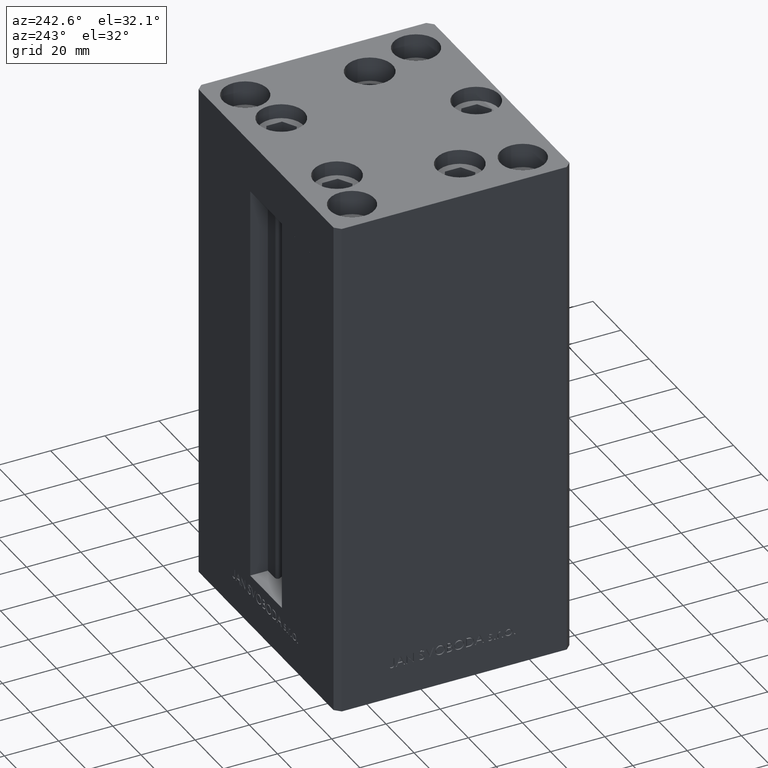
[diagram: clean part render]
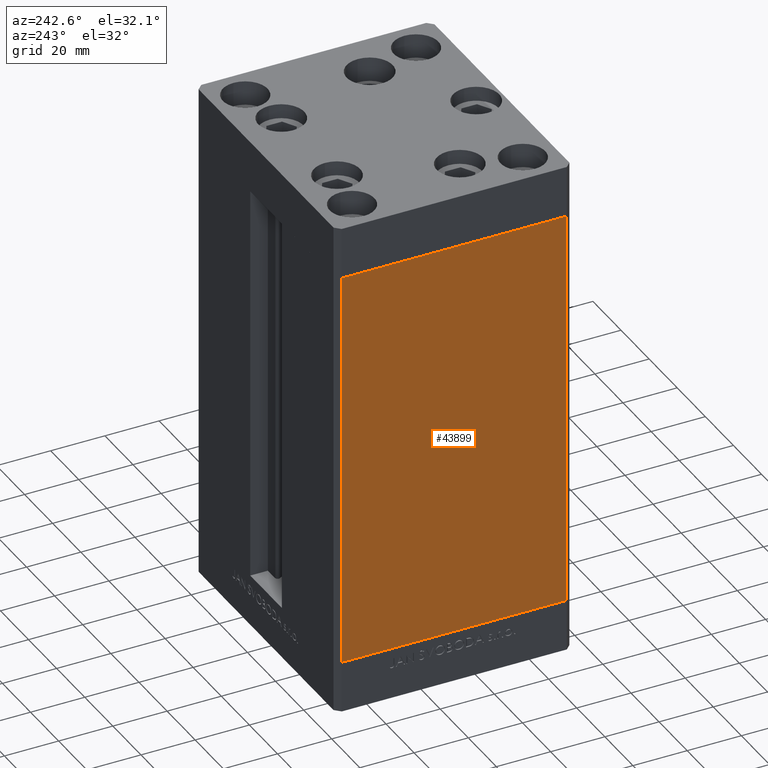
[diagram: same view with one face highlighted and labeled with its STEP entity id]
A machine part, auxiliary view. The second image highlights one B-rep face of the part: STEP entity #43899.
In plain terms, the highlighted planar face has unit normal (1, 0, 0).
Its self-contained STEP definition (entity closure, byte-faithful):
#1165 = ORIENTED_EDGE ( 'NONE', *, *, #12941, .F. ) ;
#2141 = FACE_OUTER_BOUND ( 'NONE', #47112, .T. ) ;
#2639 = CARTESIAN_POINT ( 'NONE',  ( -50.00000000000001421, 41.49999999999999289, 148.5000000000000000 ) ) ;
#3711 = DIRECTION ( 'NONE',  ( -0.000000000000000000, -0.000000000000000000, -1.000000000000000000 ) ) ;
#4385 = CARTESIAN_POINT ( 'NONE',  ( -49.99999999999998579, -41.49999999999999289, 148.5000000000000000 ) ) ;
#5912 = DIRECTION ( 'NONE',  ( -3.344045254895050480E-16, 1.000000000000000000, 0.000000000000000000 ) ) ;
#10884 = LINE ( 'NONE', #37479, #31585 ) ;
#11240 = LINE ( 'NONE', #22529, #28322 ) ;
#12941 = EDGE_CURVE ( 'NONE', #17234, #38104, #42525, .T. ) ;
#13695 = VERTEX_POINT ( 'NONE', #38877 ) ;
#17234 = VERTEX_POINT ( 'NONE', #22021 ) ;
#18579 = VECTOR ( 'NONE', #30507, 1000.000000000000000 ) ;
#18679 = DIRECTION ( 'NONE',  ( 3.344045254895050973E-16, -1.000000000000000000, 0.000000000000000000 ) ) ;
#20809 = ORIENTED_EDGE ( 'NONE', *, *, #21208, .T. ) ;
#21208 = EDGE_CURVE ( 'NONE', #35859, #13695, #11240, .T. ) ;
#22021 = CARTESIAN_POINT ( 'NONE',  ( -49.99999999999998579, -41.49999999999999289, 148.5000000000000000 ) ) ;
#22529 = CARTESIAN_POINT ( 'NONE',  ( -50.00000000000001421, 41.49999999999999289, 148.5000000000000000 ) ) ;
#22897 = EDGE_CURVE ( 'NONE', #13695, #38104, #10884, .T. ) ;
#25795 = LINE ( 'NONE', #41355, #35169 ) ;
#26274 = DIRECTION ( 'NONE',  ( 3.344045254895050973E-16, -1.000000000000000000, 0.000000000000000000 ) ) ;
#28322 = VECTOR ( 'NONE', #3711, 1000.000000000000000 ) ;
#30043 = CARTESIAN_POINT ( 'NONE',  ( -50.00000000000001421, 41.49999999999999289, 148.5000000000000000 ) ) ;
#30507 = DIRECTION ( 'NONE',  ( -0.000000000000000000, -0.000000000000000000, -1.000000000000000000 ) ) ;
#31585 = VECTOR ( 'NONE', #18679, 1000.000000000000000 ) ;
#32992 = DIRECTION ( 'NONE',  ( 1.000000000000000000, 3.344045254895050480E-16, -0.000000000000000000 ) ) ;
#33192 = ORIENTED_EDGE ( 'NONE', *, *, #22897, .T. ) ;
#35169 = VECTOR ( 'NONE', #26274, 1000.000000000000000 ) ;
#35859 = VERTEX_POINT ( 'NONE', #30043 ) ;
#37479 = CARTESIAN_POINT ( 'NONE',  ( -50.00000000000001421, 41.49999999999999289, 0.000000000000000000 ) ) ;
#37628 = AXIS2_PLACEMENT_3D ( 'NONE', #2639, #32992, #5912 ) ;
#38104 = VERTEX_POINT ( 'NONE', #45619 ) ;
#38877 = CARTESIAN_POINT ( 'NONE',  ( -50.00000000000001421, 41.49999999999999289, 0.000000000000000000 ) ) ;
#40553 = ORIENTED_EDGE ( 'NONE', *, *, #42488, .F. ) ;
#41355 = CARTESIAN_POINT ( 'NONE',  ( -50.00000000000001421, 41.49999999999999289, 148.5000000000000000 ) ) ;
#42488 = EDGE_CURVE ( 'NONE', #35859, #17234, #25795, .T. ) ;
#42525 = LINE ( 'NONE', #4385, #18579 ) ;
#43899 = ADVANCED_FACE ( 'NONE', ( #2141 ), #48540, .F. ) ;
#45619 = CARTESIAN_POINT ( 'NONE',  ( -49.99999999999998579, -41.49999999999999289, 0.000000000000000000 ) ) ;
#47112 = EDGE_LOOP ( 'NONE', ( #33192, #1165, #40553, #20809 ) ) ;
#48540 = PLANE ( 'NONE',  #37628 ) ;